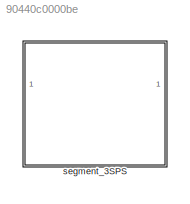
MODEL slx_90440c0000be
KIND library
CONFIG AbsTol = auto
CONFIG EnableMultiTasking = off
CONFIG FixedStep = auto
CONFIG MaxStep = auto
CONFIG MinStep = auto
CONFIG RelTol = 1e-3
CONFIG SampleTimeConstraint = Unconstrained
CONFIG Solver = VariableStepAuto
CONFIG SolverName = VariableStepAuto
CONFIG StartTime = 0.0
CONFIG StopTime = 10.0
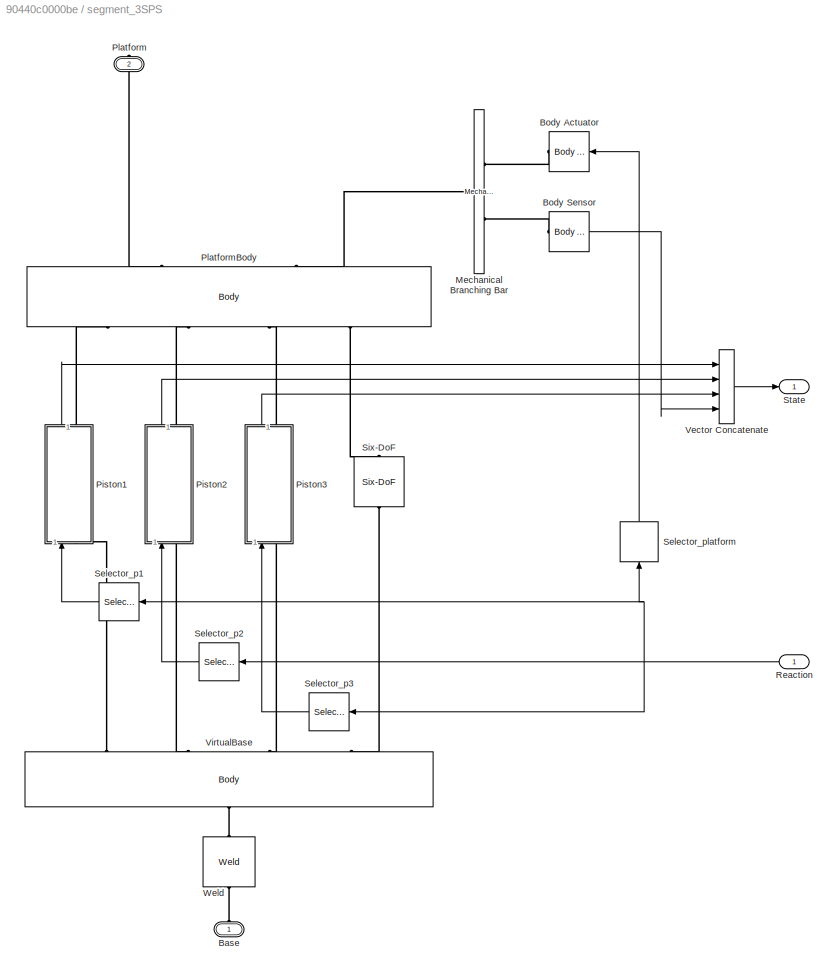
BLOCK [SubSystem] segment_3SPS
  Ports = [1, 1, 0, 0, 0, 1, 1]
  RequestExecContextInheritance = off
  Variant = off
BLOCK [PMIOPort] segment_3SPS/Base
  Port = 1
  Side = Left
BLOCK [Reference] segment_3SPS/Body Actuator  REF=mblibv1/Sensors & 
Actuators/Body Actuator
  Ports = [1, 0, 0, 0, 0, 0, 1]
  SourceBlock = mblibv1/Sensors & \nActuators/Body Actuator
  SourceProductBaseCode = MS
  SourceProductName = Simscape Multibody
  SourceType = Body Actuator
BLOCK [Reference] segment_3SPS/Body Sensor  REF=mblibv1/Sensors & 
Actuators/Body Sensor
  Ports = [0, 1, 0, 0, 0, 1]
  SourceBlock = mblibv1/Sensors & \nActuators/Body Sensor
  SourceProductBaseCode = MS
  SourceProductName = Simscape Multibody
  SourceType = Body Sensor
BLOCK [Reference] segment_3SPS/Mechanical Branching Bar  REF=mblibv1/Utilities/Mechanical
Branching
Bar
  Ports = [0, 0, 0, 0, 0, 1, 2]
  SourceBlock = mblibv1/Utilities/Mechanical\nBranching\nBar
  SourceProductBaseCode = MS
  SourceProductName = Simscape Multibody
  SourceType = Mechanical Branching Bar
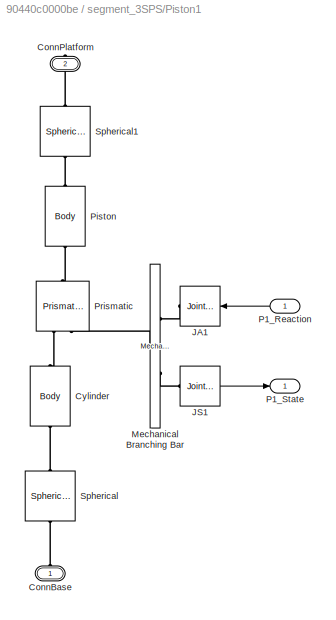
BLOCK [SubSystem] segment_3SPS/Piston1
  Ports = [1, 1, 0, 0, 0, 1, 1]
  RequestExecContextInheritance = off
  Variant = off
BLOCK [PMIOPort] segment_3SPS/Piston1/ConnBase
  Port = 1
  Side = Left
BLOCK [PMIOPort] segment_3SPS/Piston1/ConnPlatform
  Port = 2
  Side = Right
BLOCK [Reference] segment_3SPS/Piston1/Cylinder  REF=mblibv1/Bodies/Body
  Ports = [0, 0, 0, 0, 0, 1, 1]
  SourceBlock = mblibv1/Bodies/Body
  SourceProductBaseCode = MS
  SourceProductName = Simscape Multibody
  SourceType = Body
BLOCK [Reference] segment_3SPS/Piston1/JA1  REF=mblibv1/Sensors & 
Actuators/Joint Actuator
  Ports = [1, 0, 0, 0, 0, 0, 1]
  SourceBlock = mblibv1/Sensors & \nActuators/Joint Actuator
  SourceProductBaseCode = MS
  SourceProductName = Simscape Multibody
  SourceType = Joint Actuator
BLOCK [Reference] segment_3SPS/Piston1/JS1  REF=mblibv1/Sensors & 
Actuators/Joint Sensor
  Ports = [0, 1, 0, 0, 0, 1]
  SourceBlock = mblibv1/Sensors & \nActuators/Joint Sensor
  SourceProductBaseCode = MS
  SourceProductName = Simscape Multibody
  SourceType = Joint Sensor
BLOCK [Reference] segment_3SPS/Piston1/Mechanical Branching Bar  REF=mblibv1/Utilities/Mechanical
Branching
Bar
  Ports = [0, 0, 0, 0, 0, 1, 2]
  SourceBlock = mblibv1/Utilities/Mechanical\nBranching\nBar
  SourceProductBaseCode = MS
  SourceProductName = Simscape Multibody
  SourceType = Mechanical Branching Bar
BLOCK [Inport] segment_3SPS/Piston1/P1_Reaction
  IconDisplay = Port number
BLOCK [Outport] segment_3SPS/Piston1/P1_State
  IconDisplay = Port number
BLOCK [Reference] segment_3SPS/Piston1/Piston  REF=mblibv1/Bodies/Body
  Ports = [0, 0, 0, 0, 0, 1, 1]
  SourceBlock = mblibv1/Bodies/Body
  SourceProductBaseCode = MS
  SourceProductName = Simscape Multibody
  SourceType = Body
BLOCK [Reference] segment_3SPS/Piston1/Prismatic  REF=mblibv1/Joints/Prismatic
  Ports = [0, 0, 0, 0, 0, 2, 1]
  SourceBlock = mblibv1/Joints/Prismatic
  SourceProductBaseCode = MS
  SourceProductName = Simscape Multibody
  SourceType = Prismatic
BLOCK [Reference] segment_3SPS/Piston1/Spherical  REF=mblibv1/Joints/Spherical
  Ports = [0, 0, 0, 0, 0, 1, 1]
  SourceBlock = mblibv1/Joints/Spherical
  SourceProductBaseCode = MS
  SourceProductName = Simscape Multibody
  SourceType = Spherical
BLOCK [Reference] segment_3SPS/Piston1/Spherical1  REF=mblibv1/Joints/Spherical
  Ports = [0, 0, 0, 0, 0, 1, 1]
  SourceBlock = mblibv1/Joints/Spherical
  SourceProductBaseCode = MS
  SourceProductName = Simscape Multibody
  SourceType = Spherical
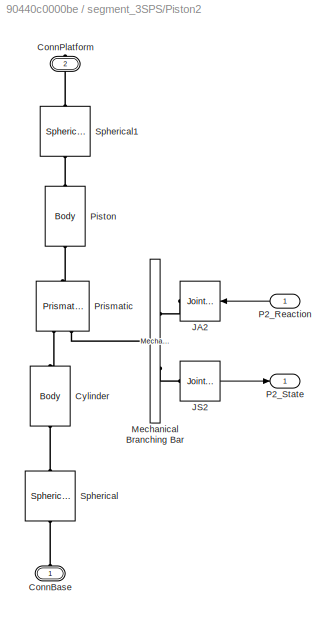
BLOCK [SubSystem] segment_3SPS/Piston2
  Ports = [1, 1, 0, 0, 0, 1, 1]
  RequestExecContextInheritance = off
  Variant = off
BLOCK [PMIOPort] segment_3SPS/Piston2/ConnBase
  Port = 1
  Side = Left
BLOCK [PMIOPort] segment_3SPS/Piston2/ConnPlatform
  Port = 2
  Side = Right
BLOCK [Reference] segment_3SPS/Piston2/Cylinder  REF=mblibv1/Bodies/Body
  Ports = [0, 0, 0, 0, 0, 1, 1]
  SourceBlock = mblibv1/Bodies/Body
  SourceProductBaseCode = MS
  SourceProductName = Simscape Multibody
  SourceType = Body
BLOCK [Reference] segment_3SPS/Piston2/JA2  REF=mblibv1/Sensors & 
Actuators/Joint Actuator
  Ports = [1, 0, 0, 0, 0, 0, 1]
  SourceBlock = mblibv1/Sensors & \nActuators/Joint Actuator
  SourceProductBaseCode = MS
  SourceProductName = Simscape Multibody
  SourceType = Joint Actuator
BLOCK [Reference] segment_3SPS/Piston2/JS2  REF=mblibv1/Sensors & 
Actuators/Joint Sensor
  Ports = [0, 1, 0, 0, 0, 1]
  SourceBlock = mblibv1/Sensors & \nActuators/Joint Sensor
  SourceProductBaseCode = MS
  SourceProductName = Simscape Multibody
  SourceType = Joint Sensor
BLOCK [Reference] segment_3SPS/Piston2/Mechanical Branching Bar  REF=mblibv1/Utilities/Mechanical
Branching
Bar
  Ports = [0, 0, 0, 0, 0, 1, 2]
  SourceBlock = mblibv1/Utilities/Mechanical\nBranching\nBar
  SourceProductBaseCode = MS
  SourceProductName = Simscape Multibody
  SourceType = Mechanical Branching Bar
BLOCK [Inport] segment_3SPS/Piston2/P2_Reaction
  IconDisplay = Port number
BLOCK [Outport] segment_3SPS/Piston2/P2_State
  IconDisplay = Port number
BLOCK [Reference] segment_3SPS/Piston2/Piston  REF=mblibv1/Bodies/Body
  Ports = [0, 0, 0, 0, 0, 1, 1]
  SourceBlock = mblibv1/Bodies/Body
  SourceProductBaseCode = MS
  SourceProductName = Simscape Multibody
  SourceType = Body
BLOCK [Reference] segment_3SPS/Piston2/Prismatic  REF=mblibv1/Joints/Prismatic
  Ports = [0, 0, 0, 0, 0, 2, 1]
  SourceBlock = mblibv1/Joints/Prismatic
  SourceProductBaseCode = MS
  SourceProductName = Simscape Multibody
  SourceType = Prismatic
BLOCK [Reference] segment_3SPS/Piston2/Spherical  REF=mblibv1/Joints/Spherical
  Ports = [0, 0, 0, 0, 0, 1, 1]
  SourceBlock = mblibv1/Joints/Spherical
  SourceProductBaseCode = MS
  SourceProductName = Simscape Multibody
  SourceType = Spherical
BLOCK [Reference] segment_3SPS/Piston2/Spherical1  REF=mblibv1/Joints/Spherical
  Ports = [0, 0, 0, 0, 0, 1, 1]
  SourceBlock = mblibv1/Joints/Spherical
  SourceProductBaseCode = MS
  SourceProductName = Simscape Multibody
  SourceType = Spherical
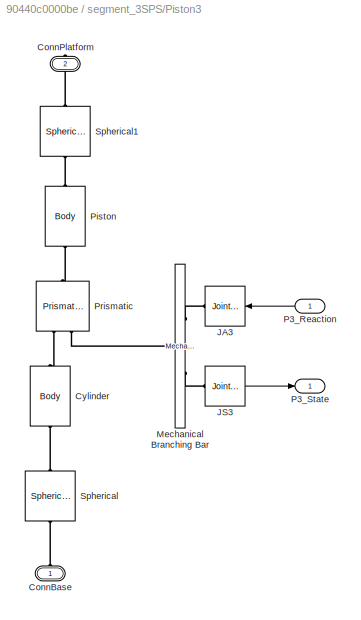
BLOCK [SubSystem] segment_3SPS/Piston3
  Ports = [1, 1, 0, 0, 0, 1, 1]
  RequestExecContextInheritance = off
  Variant = off
BLOCK [PMIOPort] segment_3SPS/Piston3/ConnBase
  Port = 1
  Side = Left
BLOCK [PMIOPort] segment_3SPS/Piston3/ConnPlatform
  Port = 2
  Side = Right
BLOCK [Reference] segment_3SPS/Piston3/Cylinder  REF=mblibv1/Bodies/Body
  Ports = [0, 0, 0, 0, 0, 1, 1]
  SourceBlock = mblibv1/Bodies/Body
  SourceProductBaseCode = MS
  SourceProductName = Simscape Multibody
  SourceType = Body
BLOCK [Reference] segment_3SPS/Piston3/JA3  REF=mblibv1/Sensors & 
Actuators/Joint Actuator
  Ports = [1, 0, 0, 0, 0, 0, 1]
  SourceBlock = mblibv1/Sensors & \nActuators/Joint Actuator
  SourceProductBaseCode = MS
  SourceProductName = Simscape Multibody
  SourceType = Joint Actuator
BLOCK [Reference] segment_3SPS/Piston3/JS3  REF=mblibv1/Sensors & 
Actuators/Joint Sensor
  Ports = [0, 1, 0, 0, 0, 1]
  SourceBlock = mblibv1/Sensors & \nActuators/Joint Sensor
  SourceProductBaseCode = MS
  SourceProductName = Simscape Multibody
  SourceType = Joint Sensor
BLOCK [Reference] segment_3SPS/Piston3/Mechanical Branching Bar  REF=mblibv1/Utilities/Mechanical
Branching
Bar
  Ports = [0, 0, 0, 0, 0, 1, 2]
  SourceBlock = mblibv1/Utilities/Mechanical\nBranching\nBar
  SourceProductBaseCode = MS
  SourceProductName = Simscape Multibody
  SourceType = Mechanical Branching Bar
BLOCK [Inport] segment_3SPS/Piston3/P3_Reaction
  IconDisplay = Port number
BLOCK [Outport] segment_3SPS/Piston3/P3_State
  IconDisplay = Port number
BLOCK [Reference] segment_3SPS/Piston3/Piston  REF=mblibv1/Bodies/Body
  Ports = [0, 0, 0, 0, 0, 1, 1]
  SourceBlock = mblibv1/Bodies/Body
  SourceProductBaseCode = MS
  SourceProductName = Simscape Multibody
  SourceType = Body
BLOCK [Reference] segment_3SPS/Piston3/Prismatic  REF=mblibv1/Joints/Prismatic
  Ports = [0, 0, 0, 0, 0, 2, 1]
  SourceBlock = mblibv1/Joints/Prismatic
  SourceProductBaseCode = MS
  SourceProductName = Simscape Multibody
  SourceType = Prismatic
BLOCK [Reference] segment_3SPS/Piston3/Spherical  REF=mblibv1/Joints/Spherical
  Ports = [0, 0, 0, 0, 0, 1, 1]
  SourceBlock = mblibv1/Joints/Spherical
  SourceProductBaseCode = MS
  SourceProductName = Simscape Multibody
  SourceType = Spherical
BLOCK [Reference] segment_3SPS/Piston3/Spherical1  REF=mblibv1/Joints/Spherical
  Ports = [0, 0, 0, 0, 0, 1, 1]
  SourceBlock = mblibv1/Joints/Spherical
  SourceProductBaseCode = MS
  SourceProductName = Simscape Multibody
  SourceType = Spherical
BLOCK [PMIOPort] segment_3SPS/Platform
  Port = 2
  Side = Right
BLOCK [Reference] segment_3SPS/PlatformBody  REF=mblibv1/Bodies/Body
  Ports = [0, 0, 0, 0, 0, 2, 4]
  SourceBlock = mblibv1/Bodies/Body
  SourceProductBaseCode = MS
  SourceProductName = Simscape Multibody
  SourceType = Body
BLOCK [Inport] segment_3SPS/Reaction
  IconDisplay = Port number
  OutDataTypeStr = double
BLOCK [Selector] segment_3SPS/Selector_p1
  IndexOptions = Index vector (dialog)
  Indices = [1]
  InputPortWidth = 9
  OutputSizes = 1
  Ports = [1, 1]
BLOCK [Selector] segment_3SPS/Selector_p2
  IndexOptions = Index vector (dialog)
  Indices = [2]
  InputPortWidth = 9
  OutputSizes = 1
  Ports = [1, 1]
BLOCK [Selector] segment_3SPS/Selector_p3
  IndexOptions = Index vector (dialog)
  Indices = [3]
  InputPortWidth = 9
  OutputSizes = 1
  Ports = [1, 1]
BLOCK [Selector] segment_3SPS/Selector_platform
  IndexOptions = Index vector (dialog)
  Indices = [4 5 6 7 8 9]
  InputPortWidth = 9
  OutputSizes = 1
  Ports = [1, 1]
BLOCK [Reference] segment_3SPS/Six-DoF  REF=mblibv1/Joints/Six-DoF
  Ports = [0, 0, 0, 0, 0, 1, 1]
  SourceBlock = mblibv1/Joints/Six-DoF
  SourceProductBaseCode = MS
  SourceProductName = Simscape Multibody
  SourceType = Six-DoF
BLOCK [Outport] segment_3SPS/State
  IconDisplay = Port number
  OutDataTypeStr = double
BLOCK [Concatenate] segment_3SPS/Vector Concatenate
  NumInputs = 4
  Ports = [4, 1]
BLOCK [Reference] segment_3SPS/VirtualBase  REF=mblibv1/Bodies/Body
  Ports = [0, 0, 0, 0, 0, 4, 1]
  SourceBlock = mblibv1/Bodies/Body
  SourceProductBaseCode = MS
  SourceProductName = Simscape Multibody
  SourceType = Body
BLOCK [Reference] segment_3SPS/Weld  REF=mblibv1/Joints/Weld
  Ports = [0, 0, 0, 0, 0, 1, 1]
  SourceBlock = mblibv1/Joints/Weld
  SourceProductBaseCode = MS
  SourceProductName = Simscape Multibody
  SourceType = Weld
LINE segment_3SPS/Body Sensor:1 -> segment_3SPS/Vector Concatenate:4
LINE segment_3SPS/Piston1/JS1:1 -> segment_3SPS/Piston1/P1_State:1
LINE segment_3SPS/Piston1/P1_Reaction:1 -> segment_3SPS/Piston1/JA1:1
LINE segment_3SPS/Piston1:1 -> segment_3SPS/Vector Concatenate:1
LINE segment_3SPS/Piston2/JS2:1 -> segment_3SPS/Piston2/P2_State:1
LINE segment_3SPS/Piston2/P2_Reaction:1 -> segment_3SPS/Piston2/JA2:1
LINE segment_3SPS/Piston2:1 -> segment_3SPS/Vector Concatenate:2
LINE segment_3SPS/Piston3/JS3:1 -> segment_3SPS/Piston3/P3_State:1
LINE segment_3SPS/Piston3/P3_Reaction:1 -> segment_3SPS/Piston3/JA3:1
LINE segment_3SPS/Piston3:1 -> segment_3SPS/Vector Concatenate:3
NET segment_3SPS/Reaction:1 -> segment_3SPS/Selector_p1:1, segment_3SPS/Selector_p2:1, segment_3SPS/Selector_p3:1, segment_3SPS/Selector_platform:1
LINE segment_3SPS/Selector_p1:1 -> segment_3SPS/Piston1:1
LINE segment_3SPS/Selector_p2:1 -> segment_3SPS/Piston2:1
LINE segment_3SPS/Selector_p3:1 -> segment_3SPS/Piston3:1
LINE segment_3SPS/Selector_platform:1 -> segment_3SPS/Body Actuator:1
LINE segment_3SPS/Vector Concatenate:1 -> segment_3SPS/State:1
PLINE segment_3SPS/Base:RConn1 -- segment_3SPS/Weld:LConn1
PLINE segment_3SPS/Body Actuator:RConn1 -- segment_3SPS/Mechanical Branching Bar:RConn1
PLINE segment_3SPS/Body Sensor:LConn1 -- segment_3SPS/Mechanical Branching Bar:RConn2
PLINE segment_3SPS/Mechanical Branching Bar:LConn1 -- segment_3SPS/PlatformBody:LConn2
PLINE segment_3SPS/Piston1/ConnBase:RConn1 -- segment_3SPS/Piston1/Spherical:LConn1
PLINE segment_3SPS/Piston1/ConnPlatform:RConn1 -- segment_3SPS/Piston1/Spherical1:RConn1
PLINE segment_3SPS/Piston1/Cylinder:LConn1 -- segment_3SPS/Piston1/Prismatic:LConn1
PLINE segment_3SPS/Piston1/Cylinder:RConn1 -- segment_3SPS/Piston1/Spherical:RConn1
PLINE segment_3SPS/Piston1/JA1:RConn1 -- segment_3SPS/Piston1/Mechanical Branching Bar:RConn1
PLINE segment_3SPS/Piston1/JS1:LConn1 -- segment_3SPS/Piston1/Mechanical Branching Bar:RConn2
PLINE segment_3SPS/Piston1/Mechanical Branching Bar:LConn1 -- segment_3SPS/Piston1/Prismatic:LConn2
PLINE segment_3SPS/Piston1/Piston:LConn1 -- segment_3SPS/Piston1/Spherical1:LConn1
PLINE segment_3SPS/Piston1/Piston:RConn1 -- segment_3SPS/Piston1/Prismatic:RConn1
PLINE segment_3SPS/Piston1:LConn1 -- segment_3SPS/VirtualBase:LConn1
PLINE segment_3SPS/Piston1:RConn1 -- segment_3SPS/PlatformBody:RConn1
PLINE segment_3SPS/Piston2/ConnBase:RConn1 -- segment_3SPS/Piston2/Spherical:LConn1
PLINE segment_3SPS/Piston2/ConnPlatform:RConn1 -- segment_3SPS/Piston2/Spherical1:RConn1
PLINE segment_3SPS/Piston2/Cylinder:LConn1 -- segment_3SPS/Piston2/Prismatic:LConn1
PLINE segment_3SPS/Piston2/Cylinder:RConn1 -- segment_3SPS/Piston2/Spherical:RConn1
PLINE segment_3SPS/Piston2/JA2:RConn1 -- segment_3SPS/Piston2/Mechanical Branching Bar:RConn1
PLINE segment_3SPS/Piston2/JS2:LConn1 -- segment_3SPS/Piston2/Mechanical Branching Bar:RConn2
PLINE segment_3SPS/Piston2/Mechanical Branching Bar:LConn1 -- segment_3SPS/Piston2/Prismatic:LConn2
PLINE segment_3SPS/Piston2/Piston:LConn1 -- segment_3SPS/Piston2/Spherical1:LConn1
PLINE segment_3SPS/Piston2/Piston:RConn1 -- segment_3SPS/Piston2/Prismatic:RConn1
PLINE segment_3SPS/Piston2:LConn1 -- segment_3SPS/VirtualBase:LConn2
PLINE segment_3SPS/Piston2:RConn1 -- segment_3SPS/PlatformBody:RConn2
PLINE segment_3SPS/Piston3/ConnBase:RConn1 -- segment_3SPS/Piston3/Spherical:LConn1
PLINE segment_3SPS/Piston3/ConnPlatform:RConn1 -- segment_3SPS/Piston3/Spherical1:RConn1
PLINE segment_3SPS/Piston3/Cylinder:LConn1 -- segment_3SPS/Piston3/Prismatic:LConn1
PLINE segment_3SPS/Piston3/Cylinder:RConn1 -- segment_3SPS/Piston3/Spherical:RConn1
PLINE segment_3SPS/Piston3/JA3:RConn1 -- segment_3SPS/Piston3/Mechanical Branching Bar:RConn1
PLINE segment_3SPS/Piston3/JS3:LConn1 -- segment_3SPS/Piston3/Mechanical Branching Bar:RConn2
PLINE segment_3SPS/Piston3/Mechanical Branching Bar:LConn1 -- segment_3SPS/Piston3/Prismatic:LConn2
PLINE segment_3SPS/Piston3/Piston:LConn1 -- segment_3SPS/Piston3/Spherical1:LConn1
PLINE segment_3SPS/Piston3/Piston:RConn1 -- segment_3SPS/Piston3/Prismatic:RConn1
PLINE segment_3SPS/Piston3:LConn1 -- segment_3SPS/VirtualBase:LConn3
PLINE segment_3SPS/Piston3:RConn1 -- segment_3SPS/PlatformBody:RConn3
PLINE segment_3SPS/Platform:RConn1 -- segment_3SPS/PlatformBody:LConn1
PLINE segment_3SPS/PlatformBody:RConn4 -- segment_3SPS/Six-DoF:RConn1
PLINE segment_3SPS/Six-DoF:LConn1 -- segment_3SPS/VirtualBase:LConn4
PLINE segment_3SPS/VirtualBase:RConn1 -- segment_3SPS/Weld:RConn1
note: NET lines group one-source signal fan-out (src -> all destinations, sorted); 1:1 wires keep LINE
